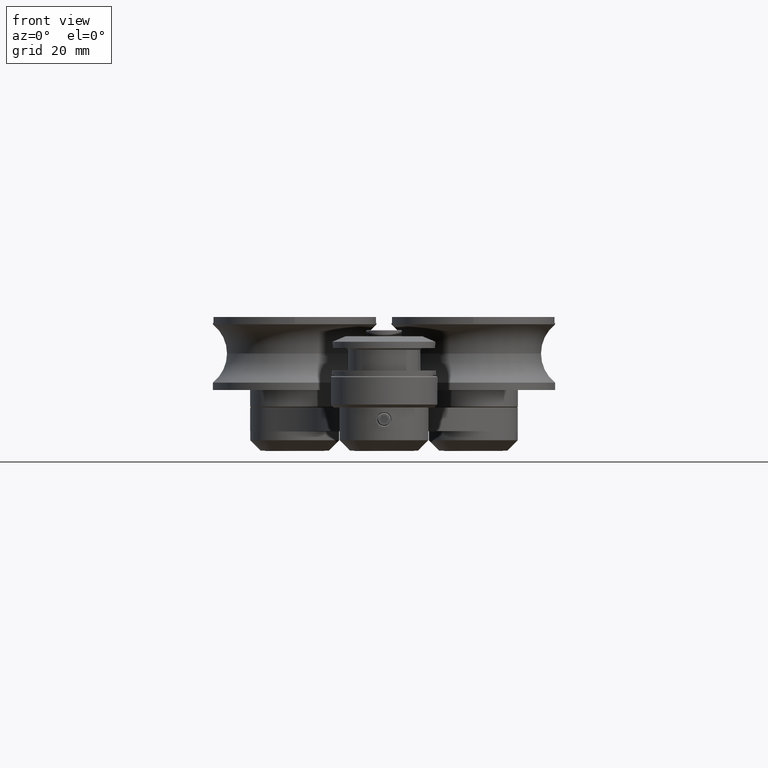
[diagram: clean part render]
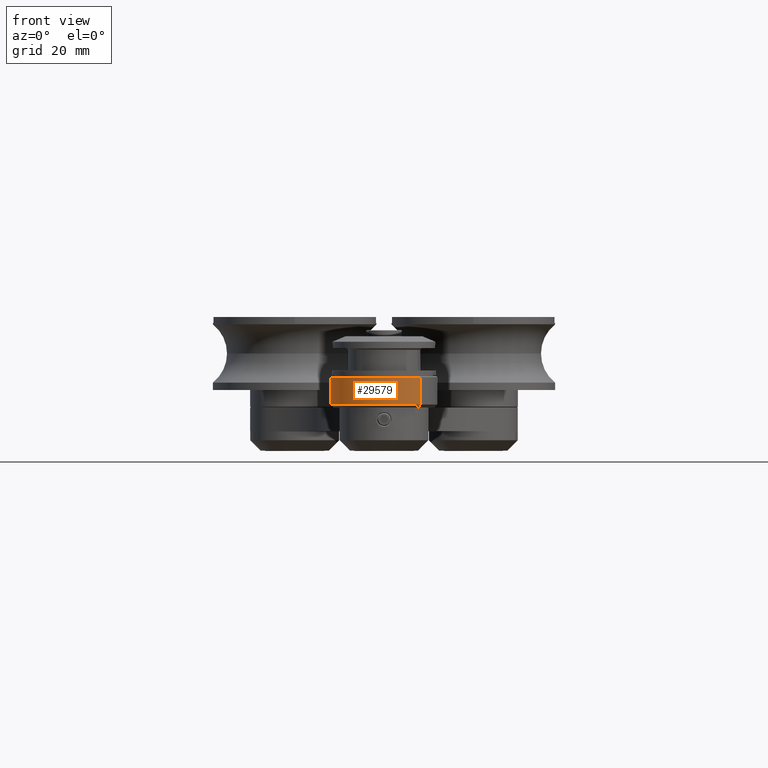
[diagram: same view with one face highlighted and labeled with its STEP entity id]
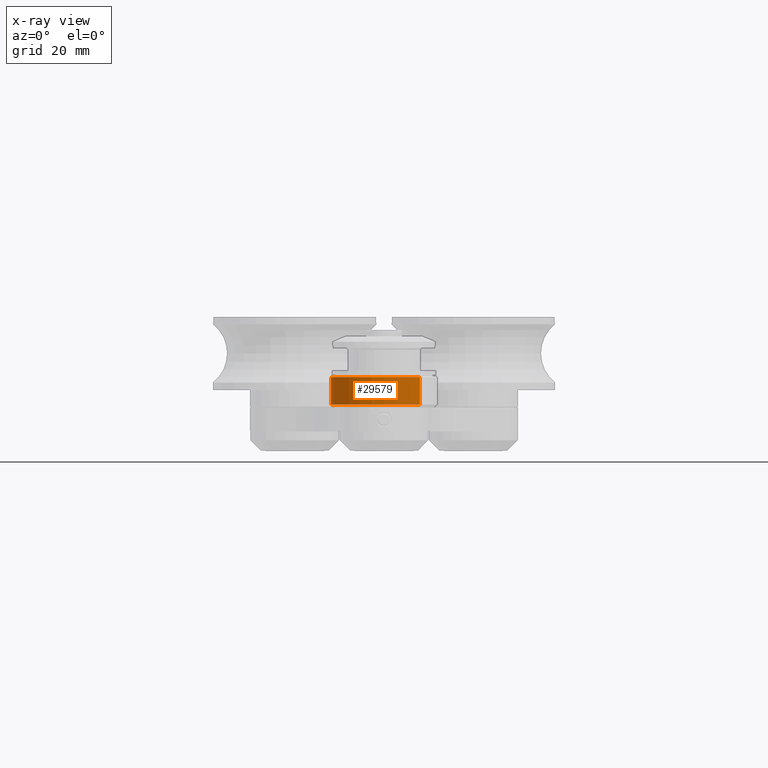
[diagram: x-ray of the same camera — body ghosted, the highlighted face saturated]
A machine part, front view. The second image highlights one B-rep face of the part: STEP entity #29579.
The next image is the same camera in x-ray: the body ghosted, the highlighted face saturated — about 0% of this face is hidden behind the body in this view.
In plain terms, the highlighted cylindrical surface (partial cylindrical patch) has radius 18 mm, axis along (-0, 0, 1).
Its self-contained STEP definition (entity closure, byte-faithful):
#1122 = CARTESIAN_POINT ( 'NONE',  ( -18.00000000000000000, 2.204364238465235400E-015, 1.000000000000000900 ) ) ;
#1796 = CARTESIAN_POINT ( 'NONE',  ( -18.00000000000000000, 2.204364238465235400E-015, 10.50000000000000000 ) ) ;
#1869 = CARTESIAN_POINT ( 'NONE',  ( 0.0000000000000000000, 0.0000000000000000000, 10.19999999999998300 ) ) ;
#2170 = DIRECTION ( 'NONE',  ( -0.0000000000000000000, -0.0000000000000000000, 1.000000000000000000 ) ) ;
#2865 = EDGE_CURVE ( 'NONE', #4361, #22016, #43754, .T. ) ;
#4361 = VERTEX_POINT ( 'NONE', #1122 ) ;
#5973 = DIRECTION ( 'NONE',  ( 1.000000000000000000, 0.0000000000000000000, 0.0000000000000000000 ) ) ;
#7007 = CARTESIAN_POINT ( 'NONE',  ( -18.00000000000000000, 2.204364238465235400E-015, 10.19999999999998300 ) ) ;
#7397 = ORIENTED_EDGE ( 'NONE', *, *, #2865, .T. ) ;
#7923 = DIRECTION ( 'NONE',  ( 1.000000000000000000, 0.0000000000000000000, 0.0000000000000000000 ) ) ;
#8079 = CARTESIAN_POINT ( 'NONE',  ( 0.0000000000000000000, 0.0000000000000000000, 1.000000000000000900 ) ) ;
#13460 = AXIS2_PLACEMENT_3D ( 'NONE', #8079, #43426, #7923 ) ;
#14182 = ORIENTED_EDGE ( 'NONE', *, *, #39666, .F. ) ;
#15211 = VERTEX_POINT ( 'NONE', #30242 ) ;
#15609 = EDGE_CURVE ( 'NONE', #22016, #15211, #37664, .T. ) ;
#16618 = CARTESIAN_POINT ( 'NONE',  ( 18.00000000000000000, 0.0000000000000000000, 1.000000000000000900 ) ) ;
#16919 = FACE_OUTER_BOUND ( 'NONE', #23287, .T. ) ;
#18022 = CYLINDRICAL_SURFACE ( 'NONE', #32689, 18.00000000000000000 ) ;
#21466 = VECTOR ( 'NONE', #2170, 1000.000000000000000 ) ;
#22016 = VERTEX_POINT ( 'NONE', #16618 ) ;
#23287 = EDGE_LOOP ( 'NONE', ( #14182, #7397, #32967, #24250 ) ) ;
#24250 = ORIENTED_EDGE ( 'NONE', *, *, #38915, .T. ) ;
#25254 = AXIS2_PLACEMENT_3D ( 'NONE', #1869, #41242, #44854 ) ;
#26450 = DIRECTION ( 'NONE',  ( -0.0000000000000000000, -0.0000000000000000000, 1.000000000000000000 ) ) ;
#27617 = CARTESIAN_POINT ( 'NONE',  ( 18.00000000000000000, 0.0000000000000000000, 10.50000000000000000 ) ) ;
#29579 = ADVANCED_FACE ( 'NONE', ( #16919 ), #18022, .T. ) ;
#30242 = CARTESIAN_POINT ( 'NONE',  ( 18.00000000000000000, 0.0000000000000000000, 10.19999999999998300 ) ) ;
#31695 = VECTOR ( 'NONE', #26450, 1000.000000000000000 ) ;
#32689 = AXIS2_PLACEMENT_3D ( 'NONE', #34132, #34449, #5973 ) ;
#32967 = ORIENTED_EDGE ( 'NONE', *, *, #15609, .T. ) ;
#34132 = CARTESIAN_POINT ( 'NONE',  ( 0.0000000000000000000, 0.0000000000000000000, 10.50000000000000000 ) ) ;
#34449 = DIRECTION ( 'NONE',  ( -0.0000000000000000000, -0.0000000000000000000, 1.000000000000000000 ) ) ;
#37664 = LINE ( 'NONE', #27617, #21466 ) ;
#38915 = EDGE_CURVE ( 'NONE', #15211, #45174, #40686, .T. ) ;
#39666 = EDGE_CURVE ( 'NONE', #4361, #45174, #41205, .T. ) ;
#40686 = CIRCLE ( 'NONE', #25254, 18.00000000000000000 ) ;
#41205 = LINE ( 'NONE', #1796, #31695 ) ;
#41242 = DIRECTION ( 'NONE',  ( 0.0000000000000000000, 0.0000000000000000000, -1.000000000000000000 ) ) ;
#43426 = DIRECTION ( 'NONE',  ( -0.0000000000000000000, -0.0000000000000000000, 1.000000000000000000 ) ) ;
#43754 = CIRCLE ( 'NONE', #13460, 18.00000000000000000 ) ;
#44854 = DIRECTION ( 'NONE',  ( -1.000000000000000000, 0.0000000000000000000, 0.0000000000000000000 ) ) ;
#45174 = VERTEX_POINT ( 'NONE', #7007 ) ;